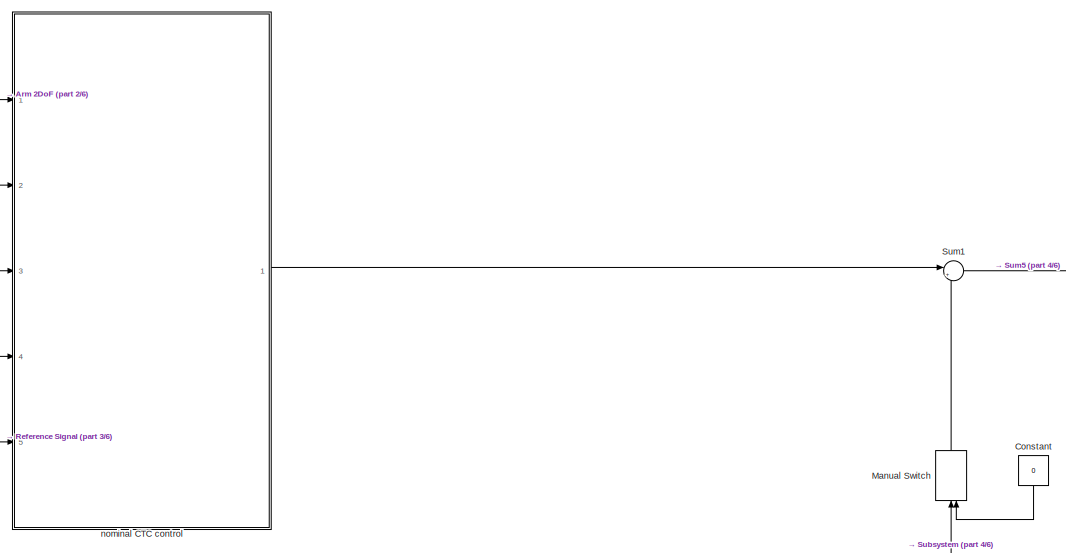
[diagram: root canvas - part 1/6, top center region]
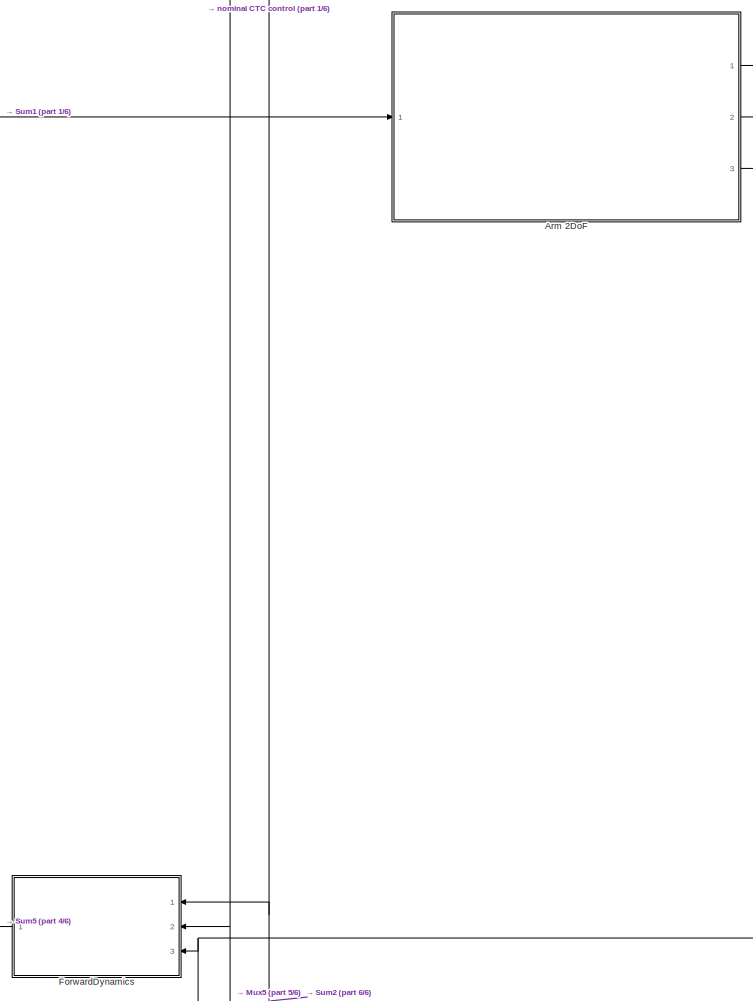
[diagram: root canvas - part 2/6, middle right region]
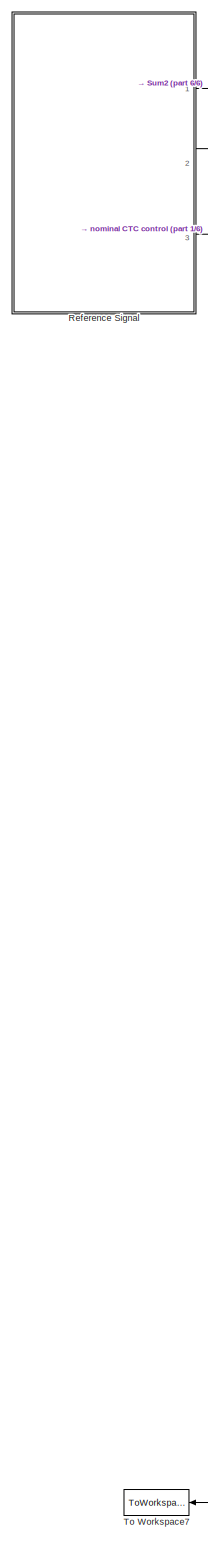
[diagram: root canvas - part 3/6, left side, full height]
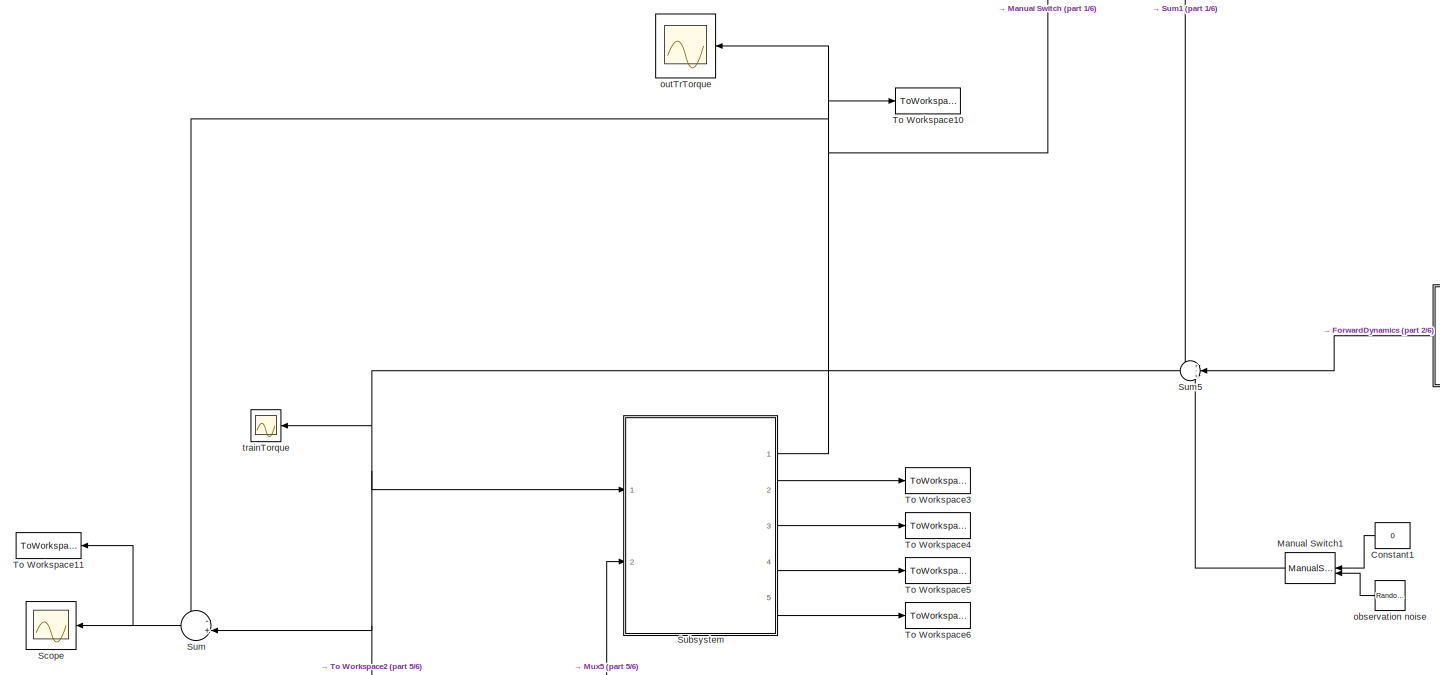
[diagram: root canvas - part 4/6, central region]
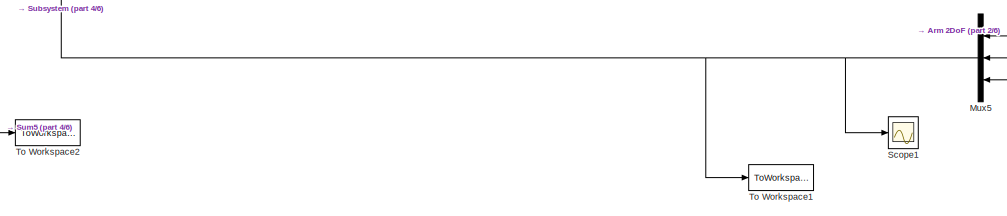
[diagram: root canvas - part 5/6, bottom center region]
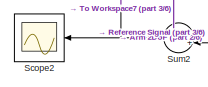
[diagram: root canvas - part 6/6, bottom left region]
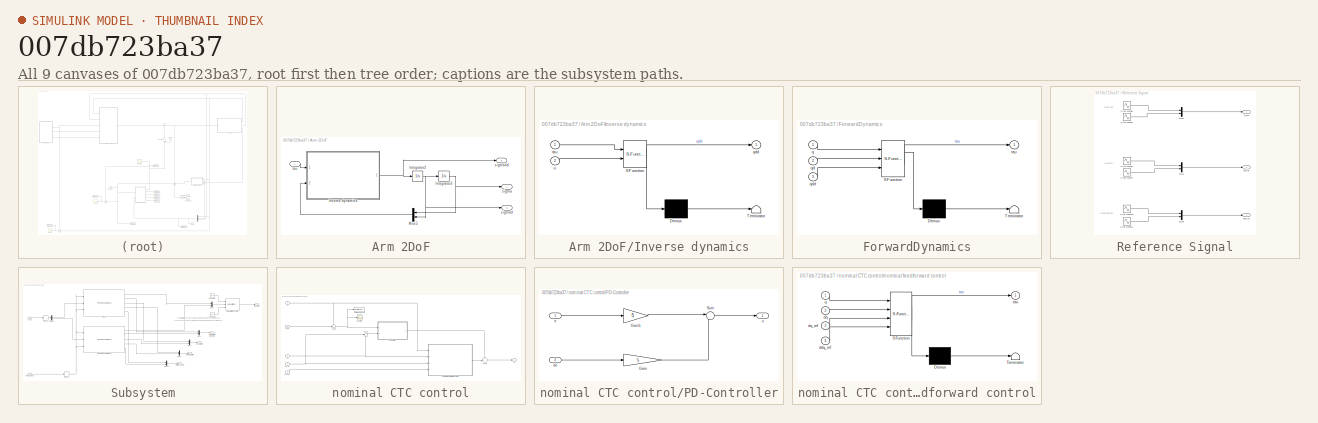
[diagram: thumbnail index - all 9 canvases of the model, root first then tree order]
MODEL slx_007db723ba37
KIND model
CONFIG AbsTol = auto
CONFIG EnableMultiTasking = off
CONFIG FixedStep = 1e-2
CONFIG MaxStep = auto
CONFIG MinStep = auto
CONFIG RelTol = 1e-3
CONFIG SampleTimeConstraint = Unconstrained
CONFIG Solver = FixedStepAuto
CONFIG SolverName = FixedStepAuto
CONFIG StartTime = 0
CONFIG StopTime = 60
WORKSPACE source: external: MAT-File  (data not in archive)
BLOCK [SubSystem] Arm 2DoF
  Ports = [1, 3]
  RequestExecContextInheritance = off
BLOCK [Integrator] Arm 2DoF/Integrator2
  InitialCondition = [0;0]
  Ports = [1, 1]
BLOCK [Integrator] Arm 2DoF/Integrator3
  InitialCondition = [0;0]
  Ports = [1, 1]
BLOCK [SubSystem] Arm 2DoF/Inverse dynamics
  ErrorFcn = Stateflow.Translate.translate
  PermitHierarchicalResolution = ExplicitOnly
  Ports = [2, 1]
  RequestExecContextInheritance = off
  SFBlockType = MATLAB Function
  TreatAsAtomicUnit = on
BLOCK [Demux] Arm 2DoF/Inverse dynamics/ Demux 
  Outputs = 1
  Ports = [1, 1]
BLOCK [S-Function] Arm 2DoF/Inverse dynamics/ SFunction 
  EnableBusSupport = on
  FunctionName = sf_sfun
  PortCounts = [2 2]
  Ports = [2, 2]
  SFcnIsStateOwnerBlock = off
  SFunctionDeploymentMode = off
  Tag = Stateflow S-Function GP_CTC 8
BLOCK [Terminator] Arm 2DoF/Inverse dynamics/ Terminator 
BLOCK [Outport] Arm 2DoF/Inverse dynamics/qdd
  IconDisplay = Port number
BLOCK [Inport] Arm 2DoF/Inverse dynamics/tau
  IconDisplay = Port number
BLOCK [Inport] Arm 2DoF/Inverse dynamics/u
  IconDisplay = Port number
  Port = 2
BLOCK [Mux] Arm 2DoF/Mux5
  DisplayOption = bar
  Inputs = 2
  Ports = [2, 1]
BLOCK [Outport] Arm 2DoF/sigma
  IconDisplay = Port number
BLOCK [Outport] Arm 2DoF/sigmad
  IconDisplay = Port number
  Port = 2
BLOCK [Outport] Arm 2DoF/sigmadd
  IconDisplay = Port number
  Port = 3
BLOCK [Inport] Arm 2DoF/tau
  IconDisplay = Port number
BLOCK [Constant] Constant
  Value = 0
BLOCK [Constant] Constant1
  Value = 0
BLOCK [SubSystem] ForwardDynamics
  ErrorFcn = Stateflow.Translate.translate
  PermitHierarchicalResolution = ExplicitOnly
  Ports = [3, 1]
  RequestExecContextInheritance = off
  SFBlockType = MATLAB Function
  TreatAsAtomicUnit = on
BLOCK [Demux] ForwardDynamics/ Demux 
  Outputs = 1
  Ports = [1, 1]
BLOCK [S-Function] ForwardDynamics/ SFunction 
  EnableBusSupport = on
  FunctionName = sf_sfun
  PortCounts = [3 2]
  Ports = [3, 2]
  SFcnIsStateOwnerBlock = off
  SFunctionDeploymentMode = off
  Tag = Stateflow S-Function GP_CTC 1
BLOCK [Terminator] ForwardDynamics/ Terminator 
BLOCK [Inport] ForwardDynamics/q
  IconDisplay = Port number
BLOCK [Inport] ForwardDynamics/qd
  IconDisplay = Port number
  Port = 2
BLOCK [Inport] ForwardDynamics/qdd
  IconDisplay = Port number
  Port = 3
BLOCK [Outport] ForwardDynamics/tau
  IconDisplay = Port number
BLOCK [ManualSwitch] Manual Switch
BLOCK [ManualSwitch] Manual Switch1
  CurrentSetting = 0
BLOCK [Mux] Mux5
  DisplayOption = bar
  Inputs = 3
  Ports = [3, 1]
BLOCK [SubSystem] Reference Signal
  Ports = [0, 3]
  RequestExecContextInheritance = off
BLOCK [Mux] Reference Signal/Mux2
  DisplayOption = bar
  Inputs = 2
  Ports = [2, 1]
BLOCK [Mux] Reference Signal/Mux4
  DisplayOption = bar
  Inputs = 2
  Ports = [2, 1]
BLOCK [Mux] Reference Signal/Mux8
  DisplayOption = bar
  Inputs = 2
  Ports = [2, 1]
BLOCK [Sin] Reference Signal/Sine Wave10
  Amplitude = -pi/6
  Phase = pi/2
  Ports = [0, 1]
  SampleTime = 0
BLOCK [Sin] Reference Signal/Sine Wave11
  Amplitude = -pi/24
  Frequency = 0.5
  Phase = pi/2
  Ports = [0, 1]
  SampleTime = 0
BLOCK [Sin] Reference Signal/Sine Wave6
  Amplitude = -pi/6
  Ports = [0, 1]
  SampleTime = 0
BLOCK [Sin] Reference Signal/Sine Wave7
  Amplitude = -pi/12
  Frequency = 0.5
  Ports = [0, 1]
  SampleTime = 0
BLOCK [Sin] Reference Signal/Sine Wave8
  Amplitude = pi/6
  Phase = pi/2
  Ports = [0, 1]
  SampleTime = 0
BLOCK [Sin] Reference Signal/Sine Wave9
  Amplitude = pi/6
  Frequency = 0.5
  Phase = pi/2
  Ports = [0, 1]
  SampleTime = 0
BLOCK [Outport] Reference Signal/ddq_ref
  IconDisplay = Port number
  Port = 3
BLOCK [Outport] Reference Signal/dq_ref
  IconDisplay = Port number
  Port = 2
BLOCK [Outport] Reference Signal/q_ref
  IconDisplay = Port number
BLOCK [Scope] Scope
  Floating = off
  NumInputPorts = 1
  Ports = [1]
  ScopeSpecificationString = Simulink.scopes.TimeScopeBlockCfg('CurrentConfiguration', extmgr.ConfigurationSet(extmgr.Configuration('Core','General UI',true),extmgr.Configuration('Core','Source UI',true),extmgr.Configuration('Sources','WiredSimulink',true,'DataLoggingVariableName','ScopeData1'),extmgr.Configuration('Visuals','Time Domain',true,'SerializedDisplays',{struct('MinYLimReal','-4.10831','MaxYLimReal','3.81121','YLab...<+1516ch>
BLOCK [Scope] Scope1
  Floating = off
  NumInputPorts = 1
  Ports = [1]
  ScopeSpecificationString = Simulink.scopes.TimeScopeBlockCfg('CurrentConfiguration', extmgr.ConfigurationSet(extmgr.Configuration('Core','General UI',true),extmgr.Configuration('Core','Source UI',true),extmgr.Configuration('Sources','WiredSimulink',true,'DataLoggingVariableName','ScopeData1'),extmgr.Configuration('Visuals','Time Domain',true,'SerializedDisplays',{struct('MinYLimReal','-1.09982','MaxYLimReal','1.11992','YLab...<+1524ch>
BLOCK [Scope] Scope2
  Floating = off
  NumInputPorts = 1
  Ports = [1]
  ScopeSpecificationString = Simulink.scopes.TimeScopeBlockCfg('CurrentConfiguration', extmgr.ConfigurationSet(extmgr.Configuration('Core','General UI',true),extmgr.Configuration('Core','Source UI',true),extmgr.Configuration('Sources','WiredSimulink',true,'DataLoggingVariableName','ScopeData1'),extmgr.Configuration('Visuals','Time Domain',true,'SerializedDisplays',{struct('MinYLimReal','-4.10831','MaxYLimReal','3.81121','YLab...<+1518ch>
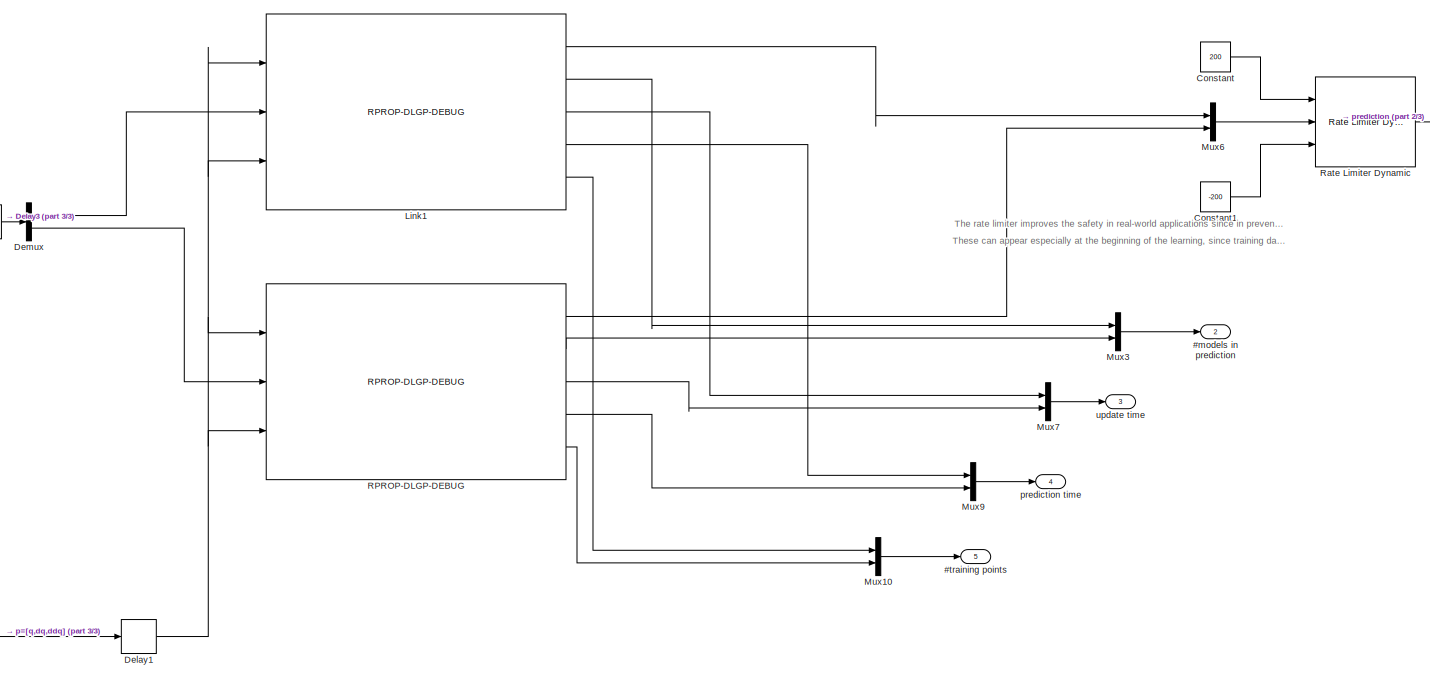
[diagram: Subsystem - part 1/3, most of the canvas]
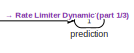
[diagram: Subsystem - part 2/3, top right region]
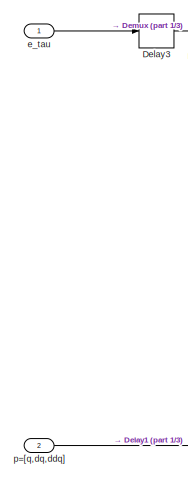
[diagram: Subsystem - part 3/3, middle left region]
BLOCK [SubSystem] Subsystem
  Ports = [2, 5]
  RequestExecContextInheritance = off
BLOCK [Outport] Subsystem/#models in prediction
  IconDisplay = Port number
  Port = 2
BLOCK [Outport] Subsystem/#training points
  IconDisplay = Port number
  Port = 5
BLOCK [Constant] Subsystem/Constant
  Value = 200
BLOCK [Constant] Subsystem/Constant1
  Value = -200
BLOCK [Delay] Subsystem/Delay1
  DelayLength = 1
  InputPortMap = u0
  Ports = [1, 1]
BLOCK [Delay] Subsystem/Delay3
  DelayLength = 1
  InputPortMap = u0
  Ports = [1, 1]
BLOCK [Demux] Subsystem/Demux
  DisplayOption = bar
  Outputs = 2
  Ports = [1, 2]
BLOCK [Reference] Subsystem/Link1  REF=RealTimeLearning/RPROP-DLGP-DEBUG
  Ports = [3, 5]
  SourceBlock = RealTimeLearning/RPROP-DLGP-DEBUG
  SourceProductName = Real Time Learning
  SourceType = LoGGP_IE_RPROP_DEBUG
BLOCK [Mux] Subsystem/Mux10
  DisplayOption = bar
  Inputs = 2
  Ports = [2, 1]
BLOCK [Mux] Subsystem/Mux3
  DisplayOption = bar
  Inputs = 2
  Ports = [2, 1]
BLOCK [Mux] Subsystem/Mux6
  DisplayOption = bar
  Inputs = 2
  Ports = [2, 1]
BLOCK [Mux] Subsystem/Mux7
  DisplayOption = bar
  Inputs = 2
  Ports = [2, 1]
BLOCK [Mux] Subsystem/Mux9
  DisplayOption = bar
  Inputs = 2
  Ports = [2, 1]
BLOCK [Reference] Subsystem/RPROP-DLGP-DEBUG  REF=RealTimeLearning/RPROP-DLGP-DEBUG
  Ports = [3, 5]
  SourceBlock = RealTimeLearning/RPROP-DLGP-DEBUG
  SourceProductName = Real Time Learning
  SourceType = LoGGP_IE_RPROP_DEBUG
BLOCK [Reference] Subsystem/Rate Limiter Dynamic  REF=simulink/Discontinuities/Rate Limiter
Dynamic
  Ports = [3, 1]
  SourceBlock = simulink/Discontinuities/Rate Limiter\nDynamic
  SourceProductBaseCode = SL
  SourceProductName = Simulink
  SourceType = Rate Limiter Dynamic
BLOCK [Inport] Subsystem/e_tau
  IconDisplay = Port number
BLOCK [Inport] Subsystem/p=[q,dq,ddq]
  IconDisplay = Port number
  Port = 2
BLOCK [Outport] Subsystem/prediction
  IconDisplay = Port number
BLOCK [Outport] Subsystem/prediction time
  IconDisplay = Port number
  Port = 4
BLOCK [Outport] Subsystem/update time
  IconDisplay = Port number
  Port = 3
BLOCK [Sum] Sum
  IconShape = round
  InputSameDT = off
  Inputs = -+|
  OutDataTypeStr = Inherit: Inherit via internal rule
  Ports = [2, 1]
  SaturateOnIntegerOverflow = off
BLOCK [Sum] Sum1
  IconShape = round
  InputSameDT = off
  Inputs = |++
  OutDataTypeStr = Inherit: Inherit via internal rule
  Ports = [2, 1]
  SaturateOnIntegerOverflow = off
BLOCK [Sum] Sum2
  IconShape = round
  InputSameDT = off
  Inputs = -+|
  OutDataTypeStr = Inherit: Inherit via internal rule
  Ports = [2, 1]
  SaturateOnIntegerOverflow = off
BLOCK [Sum] Sum5
  IconShape = round
  InputSameDT = off
  Inputs = +-+
  OutDataTypeStr = Inherit: Inherit via internal rule
  Ports = [3, 1]
  SaturateOnIntegerOverflow = off
BLOCK [ToWorkspace] To Workspace1
  FixptAsFi = on
  MaxDataPoints = inf
  Ports = [1]
  SampleTime = -1
  Save2DSignal = 2-D array (concatenate along first dimension)
  VariableName = xTrain
BLOCK [ToWorkspace] To Workspace10
  FixptAsFi = on
  MaxDataPoints = inf
  Ports = [1]
  SampleTime = -1
  Save2DSignal = 2-D array (concatenate along first dimension)
  VariableName = Y_test
BLOCK [ToWorkspace] To Workspace11
  FixptAsFi = on
  MaxDataPoints = inf
  Ports = [1]
  SampleTime = -1
  Save2DSignal = 2-D array (concatenate along first dimension)
  VariableName = absoluteError
BLOCK [ToWorkspace] To Workspace2
  FixptAsFi = on
  MaxDataPoints = inf
  Ports = [1]
  SampleTime = -1
  Save2DSignal = 2-D array (concatenate along first dimension)
  VariableName = yTrain
BLOCK [ToWorkspace] To Workspace3
  FixptAsFi = on
  MaxDataPoints = inf
  Ports = [1]
  SampleTime = -1
  Save2DSignal = 2-D array (concatenate along first dimension)
  VariableName = mNum
BLOCK [ToWorkspace] To Workspace4
  FixptAsFi = on
  MaxDataPoints = inf
  Ports = [1]
  SampleTime = -1
  Save2DSignal = 2-D array (concatenate along first dimension)
  VariableName = tU0
BLOCK [ToWorkspace] To Workspace5
  FixptAsFi = on
  MaxDataPoints = inf
  Ports = [1]
  SampleTime = -1
  Save2DSignal = 2-D array (concatenate along first dimension)
  VariableName = tP0
BLOCK [ToWorkspace] To Workspace6
  FixptAsFi = on
  MaxDataPoints = inf
  Ports = [1]
  SampleTime = -1
  Save2DSignal = 2-D array (concatenate along first dimension)
  VariableName = pts
BLOCK [ToWorkspace] To Workspace7
  FixptAsFi = on
  MaxDataPoints = inf
  Ports = [1]
  SampleTime = -1
  Save2DSignal = 2-D array (concatenate along first dimension)
  VariableName = trackingEror
BLOCK [SubSystem] nominal CTC control
  Ports = [5, 1]
  RequestExecContextInheritance = off
BLOCK [SubSystem] nominal CTC control/PD-Controller
  Ports = [2, 1]
  RequestExecContextInheritance = off
BLOCK [Gain] nominal CTC control/PD-Controller/Gain
  Gain = 5
  OutDataTypeStr = Inherit: Inherit via internal rule
  ParamDataTypeStr = Inherit: Inherit via internal rule
  SaturateOnIntegerOverflow = off
BLOCK [Gain] nominal CTC control/PD-Controller/Gain1
  Gain = 5
  OutDataTypeStr = Inherit: Inherit via internal rule
  ParamDataTypeStr = Inherit: Inherit via internal rule
  SaturateOnIntegerOverflow = off
BLOCK [Sum] nominal CTC control/PD-Controller/Sum
  IconShape = round
  InputSameDT = off
  Inputs = |++
  OutDataTypeStr = Inherit: Inherit via internal rule
  Ports = [2, 1]
  SaturateOnIntegerOverflow = off
BLOCK [Inport] nominal CTC control/PD-Controller/de
  IconDisplay = Port number
  Port = 2
BLOCK [Inport] nominal CTC control/PD-Controller/e
  IconDisplay = Port number
BLOCK [Outport] nominal CTC control/PD-Controller/u
  IconDisplay = Port number
BLOCK [Sum] nominal CTC control/Sum2
  IconShape = round
  InputSameDT = off
  Inputs = ++|
  OutDataTypeStr = Inherit: Inherit via internal rule
  Ports = [2, 1]
  SaturateOnIntegerOverflow = off
BLOCK [Sum] nominal CTC control/Sum3
  IconShape = round
  InputSameDT = off
  Inputs = |+-
  OutDataTypeStr = Inherit: Inherit via internal rule
  Ports = [2, 1]
  SaturateOnIntegerOverflow = off
BLOCK [Sum] nominal CTC control/Sum4
  IconShape = round
  InputSameDT = off
  Inputs = -+|
  OutDataTypeStr = Inherit: Inherit via internal rule
  Ports = [2, 1]
  SaturateOnIntegerOverflow = off
BLOCK [ToWorkspace] nominal CTC control/To Workspace9
  FixptAsFi = on
  MaxDataPoints = inf
  Ports = [1]
  SampleTime = -1
  Save2DSignal = 2-D array (concatenate along first dimension)
  VariableName = posError
BLOCK [Inport] nominal CTC control/ddq_ref
  IconDisplay = Port number
  Port = 5
BLOCK [Inport] nominal CTC control/dq
  IconDisplay = Port number
  Port = 2
BLOCK [Inport] nominal CTC control/dq_ref
  IconDisplay = Port number
  Port = 4
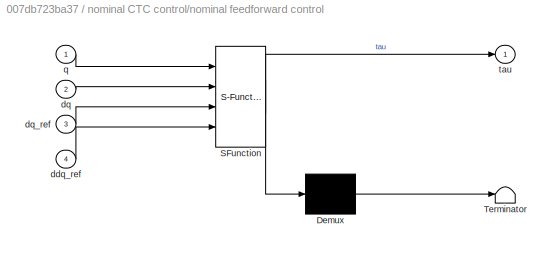
BLOCK [SubSystem] nominal CTC control/nominal feedforward control
  ErrorFcn = Stateflow.Translate.translate
  PermitHierarchicalResolution = ExplicitOnly
  Ports = [4, 1]
  RequestExecContextInheritance = off
  SFBlockType = MATLAB Function
  TreatAsAtomicUnit = on
BLOCK [Demux] nominal CTC control/nominal feedforward control/ Demux 
  Outputs = 1
  Ports = [1, 1]
BLOCK [S-Function] nominal CTC control/nominal feedforward control/ SFunction 
  EnableBusSupport = on
  FunctionName = sf_sfun
  PortCounts = [4 2]
  Ports = [4, 2]
  SFcnIsStateOwnerBlock = off
  SFunctionDeploymentMode = off
  Tag = Stateflow S-Function GP_CTC 2
BLOCK [Terminator] nominal CTC control/nominal feedforward control/ Terminator 
BLOCK [Inport] nominal CTC control/nominal feedforward control/ddq_ref
  IconDisplay = Port number
  Port = 4
BLOCK [Inport] nominal CTC control/nominal feedforward control/dq
  IconDisplay = Port number
  Port = 2
BLOCK [Inport] nominal CTC control/nominal feedforward control/dq_ref
  IconDisplay = Port number
  Port = 3
BLOCK [Inport] nominal CTC control/nominal feedforward control/q
  IconDisplay = Port number
BLOCK [Outport] nominal CTC control/nominal feedforward control/tau
  IconDisplay = Port number
BLOCK [Scope] nominal CTC control/posError
  Floating = off
  NumInputPorts = 1
  Ports = [1]
  ScopeSpecificationString = Simulink.scopes.TimeScopeBlockCfg('CurrentConfiguration', extmgr.ConfigurationSet(extmgr.Configuration('Core','General UI',true),extmgr.Configuration('Core','Source UI',true),extmgr.Configuration('Sources','WiredSimulink',true,'DataLoggingVariableName','posError','DataLoggingSaveFormat','Array','DataLoggingDecimation','6'),extmgr.Configuration('Visuals','Time Domain',true,'SerializedDisplays',{str...<+1612ch>
BLOCK [Inport] nominal CTC control/q
  IconDisplay = Port number
BLOCK [Inport] nominal CTC control/q_ref
  IconDisplay = Port number
  Port = 3
BLOCK [Outport] nominal CTC control/tau
  IconDisplay = Port number
BLOCK [RandomNumber] observation noise
  SampleTime = 0.005
BLOCK [Scope] outTrTorque
  Floating = off
  NumInputPorts = 1
  Ports = [1]
  ScopeSpecificationString = Simulink.scopes.TimeScopeBlockCfg('CurrentConfiguration', extmgr.ConfigurationSet(extmgr.Configuration('Core','General UI',true),extmgr.Configuration('Core','Source UI',true),extmgr.Configuration('Sources','WiredSimulink',true,'DataLoggingVariableName','outTrTorque','DataLoggingSaveFormat','Array'),extmgr.Configuration('Visuals','Time Domain',true,'SerializedDisplays',{struct('MinYLimReal','-247.8...<+1598ch>
BLOCK [Scope] trainTorque
  Floating = off
  NumInputPorts = 1
  Ports = [1]
  ScopeSpecificationString = Simulink.scopes.TimeScopeBlockCfg('CurrentConfiguration', extmgr.ConfigurationSet(extmgr.Configuration('Core','General UI',true),extmgr.Configuration('Core','Source UI',true),extmgr.Configuration('Sources','WiredSimulink',true,'DataLoggingVariableName','trainTorque','DataLoggingSaveFormat','Array'),extmgr.Configuration('Visuals','Time Domain',true,'SerializedDisplays',{struct('MinYLimReal','-363.4...<+1540ch>
ANNOTATION Reference Signal: Acceleration
ANNOTATION Reference Signal: Position
ANNOTATION Reference Signal: Velocity
ANNOTATION Subsystem: The rate limiter improves the safety in real-world applications since in prevents large changes in the predictions.
ANNOTATION Subsystem: These can appear especially at the beginning of the learning, since training data have a strong impact in this phase.
NET Arm 2DoF/Integrator2:1 -> Arm 2DoF/Integrator3:1, Arm 2DoF/Mux5:2, Arm 2DoF/sigmad:1
NET Arm 2DoF/Integrator3:1 -> Arm 2DoF/Mux5:1, Arm 2DoF/sigma:1
NET Arm 2DoF/Inverse dynamics:1 -> Arm 2DoF/Integrator2:1, Arm 2DoF/sigmadd:1
LINE Arm 2DoF/Mux5:1 -> Arm 2DoF/Inverse dynamics:2
LINE Arm 2DoF/tau:1 -> Arm 2DoF/Inverse dynamics:1
NET Arm 2DoF:1 -> ForwardDynamics:1, Mux5:1, Sum2:2, nominal CTC control:1
NET Arm 2DoF:2 -> ForwardDynamics:2, Mux5:2, nominal CTC control:2
NET Arm 2DoF:3 -> ForwardDynamics:3, Mux5:3
LINE Constant1:1 -> Manual Switch1:1
LINE Constant:1 -> Manual Switch:2
LINE ForwardDynamics:1 -> Sum5:2
LINE Manual Switch1:1 -> Sum5:3
LINE Manual Switch:1 -> Sum1:2
NET Mux5:1 -> Scope1:1, Subsystem:2, To Workspace1:1
LINE Reference Signal/Mux2:1 -> Reference Signal/dq_ref:1
LINE Reference Signal/Mux4:1 -> Reference Signal/q_ref:1
LINE Reference Signal/Mux8:1 -> Reference Signal/ddq_ref:1
LINE Reference Signal/Sine Wave10:1 -> Reference Signal/Mux8:1
LINE Reference Signal/Sine Wave11:1 -> Reference Signal/Mux8:2
LINE Reference Signal/Sine Wave6:1 -> Reference Signal/Mux2:1
LINE Reference Signal/Sine Wave7:1 -> Reference Signal/Mux2:2
LINE Reference Signal/Sine Wave8:1 -> Reference Signal/Mux4:1
LINE Reference Signal/Sine Wave9:1 -> Reference Signal/Mux4:2
NET Reference Signal:1 -> Sum2:1, nominal CTC control:3
LINE Reference Signal:2 -> nominal CTC control:4
LINE Reference Signal:3 -> nominal CTC control:5
LINE Subsystem/Constant1:1 -> Subsystem/Rate Limiter Dynamic:3
LINE Subsystem/Constant:1 -> Subsystem/Rate Limiter Dynamic:1
NET Subsystem/Delay1:1 -> Subsystem/Link1:1, Subsystem/Link1:3, Subsystem/RPROP-DLGP-DEBUG:1, Subsystem/RPROP-DLGP-DEBUG:3
LINE Subsystem/Delay3:1 -> Subsystem/Demux:1
LINE Subsystem/Demux:1 -> Subsystem/Link1:2
LINE Subsystem/Demux:2 -> Subsystem/RPROP-DLGP-DEBUG:2
LINE Subsystem/Link1:1 -> Subsystem/Mux6:1
LINE Subsystem/Link1:2 -> Subsystem/Mux3:1
LINE Subsystem/Link1:3 -> Subsystem/Mux7:1
LINE Subsystem/Link1:4 -> Subsystem/Mux9:1
LINE Subsystem/Link1:5 -> Subsystem/Mux10:1
LINE Subsystem/Mux10:1 -> Subsystem/#training points:1
LINE Subsystem/Mux3:1 -> Subsystem/#models in prediction:1
LINE Subsystem/Mux6:1 -> Subsystem/Rate Limiter Dynamic:2
LINE Subsystem/Mux7:1 -> Subsystem/update time:1
LINE Subsystem/Mux9:1 -> Subsystem/prediction time:1
LINE Subsystem/RPROP-DLGP-DEBUG:1 -> Subsystem/Mux6:2
LINE Subsystem/RPROP-DLGP-DEBUG:2 -> Subsystem/Mux3:2
LINE Subsystem/RPROP-DLGP-DEBUG:3 -> Subsystem/Mux7:2
LINE Subsystem/RPROP-DLGP-DEBUG:4 -> Subsystem/Mux9:2
LINE Subsystem/RPROP-DLGP-DEBUG:5 -> Subsystem/Mux10:2
LINE Subsystem/Rate Limiter Dynamic:1 -> Subsystem/prediction:1
LINE Subsystem/e_tau:1 -> Subsystem/Delay3:1
LINE Subsystem/p=[q,dq,ddq]:1 -> Subsystem/Delay1:1
NET Subsystem:1 -> Manual Switch:1, Sum:1, To Workspace10:1, outTrTorque:1
LINE Subsystem:2 -> To Workspace3:1
LINE Subsystem:3 -> To Workspace4:1
LINE Subsystem:4 -> To Workspace5:1
LINE Subsystem:5 -> To Workspace6:1
NET Sum1:1 -> Arm 2DoF:1, Sum5:1
NET Sum2:1 -> Scope2:1, To Workspace7:1
NET Sum5:1 -> Subsystem:1, Sum:2, To Workspace2:1, trainTorque:1
NET Sum:1 -> Scope:1, To Workspace11:1
LINE nominal CTC control/PD-Controller/Gain1:1 -> nominal CTC control/PD-Controller/Sum:1
LINE nominal CTC control/PD-Controller/Gain:1 -> nominal CTC control/PD-Controller/Sum:2
LINE nominal CTC control/PD-Controller/Sum:1 -> nominal CTC control/PD-Controller/u:1
LINE nominal CTC control/PD-Controller/de:1 -> nominal CTC control/PD-Controller/Gain:1
LINE nominal CTC control/PD-Controller/e:1 -> nominal CTC control/PD-Controller/Gain1:1
LINE nominal CTC control/PD-Controller:1 -> nominal CTC control/Sum2:1
LINE nominal CTC control/Sum2:1 -> nominal CTC control/tau:1
LINE nominal CTC control/Sum3:1 -> nominal CTC control/PD-Controller:2
NET nominal CTC control/Sum4:1 -> nominal CTC control/PD-Controller:1, nominal CTC control/To Workspace9:1, nominal CTC control/posError:1
LINE nominal CTC control/ddq_ref:1 -> nominal CTC control/nominal feedforward control:4
NET nominal CTC control/dq:1 -> nominal CTC control/Sum3:2, nominal CTC control/nominal feedforward control:2
NET nominal CTC control/dq_ref:1 -> nominal CTC control/Sum3:1, nominal CTC control/nominal feedforward control:3
LINE nominal CTC control/nominal feedforward control:1 -> nominal CTC control/Sum2:2
NET nominal CTC control/q:1 -> nominal CTC control/Sum4:1, nominal CTC control/nominal feedforward control:1
LINE nominal CTC control/q_ref:1 -> nominal CTC control/Sum4:2
LINE nominal CTC control:1 -> Sum1:1
LINE observation noise:1 -> Manual Switch1:2
note: NET lines group one-source signal fan-out (src -> all destinations, sorted); 1:1 wires keep LINE
CHART ForwardDynamics states=1 transitions=1
  STATE_LABEL 'eML_blk_kernel()'
  STATE_LABEL 'SCRIPT:\nfunction tau = CTcontrol(q,qd,qdd)\n%{\ninverse dynamics of a 2 DoF robotic arm\n\nInputs q: 2x1 vector. desired angular position\n       qd: 2x1 vector. desired angular velocity\n       qdd: 2x1 vector. desired angular acceleration\n\nOutput tau: 2x1 vector. Torques\n%}\nconstant = 3.0;\nIz1 = constant;   %moment of inertia\nIz2 =constant;    \nm1 = constant;    %mass\nm2 = constant;\nl1 = constant;    ...<+610ch>'
CHART nominal CTC control/nominal feedforward control states=1 transitions=1
  STATE_LABEL 'eML_blk_kernel()'
  STATE_LABEL 'SCRIPT:\nfunction tau = CTcontrol(q,dq,dq_ref,ddq_ref)\n%{\ninverse dynamics of a 2 DoF robotic arm\n\nInputs q: 2x1 vector. given angular position\n       qd: 2x1 vector. given angular velocity\n       qdD: 2x1 vector. desired angular velocity \n       qddD: 2x1 vector. desired angular acceleration\n\nOutput tau: 2x1 vector. Torques\n%}\nconstant = 3.0;\nIz1 = constant;   %moment of inertia\nIz2 =constant;    ...<+676ch>'
CHART Arm 2DoF/Inverse dynamics states=1 transitions=1
  STATE_LABEL 'eML_blk_kernel()'
  STATE_LABEL "SCRIPT:\nfunction qdd = fcn(tau,u)\n%{\ninverse dynamics of a 2 DoF robotic arm\nInputs tau: 2x1 vector. Torques\n       u: 4x1 vector [sigma1, sigma2, sigma1d, sigma2d]' position and speed\nOutput qdd: 2x1 vector with accelerations \n%}\n\nIz1 = 2;   %moment of inertia\nIz2 =2;    \nm1 = 2;    %mass\nm2 = 2;\nl1 = 2;    %length\nl2 = 2;\nr1 = 2;   %length to the center of mass\nr2 = 2;\ng = 9.81;  %gravity\n\na = I...<+470ch>"
